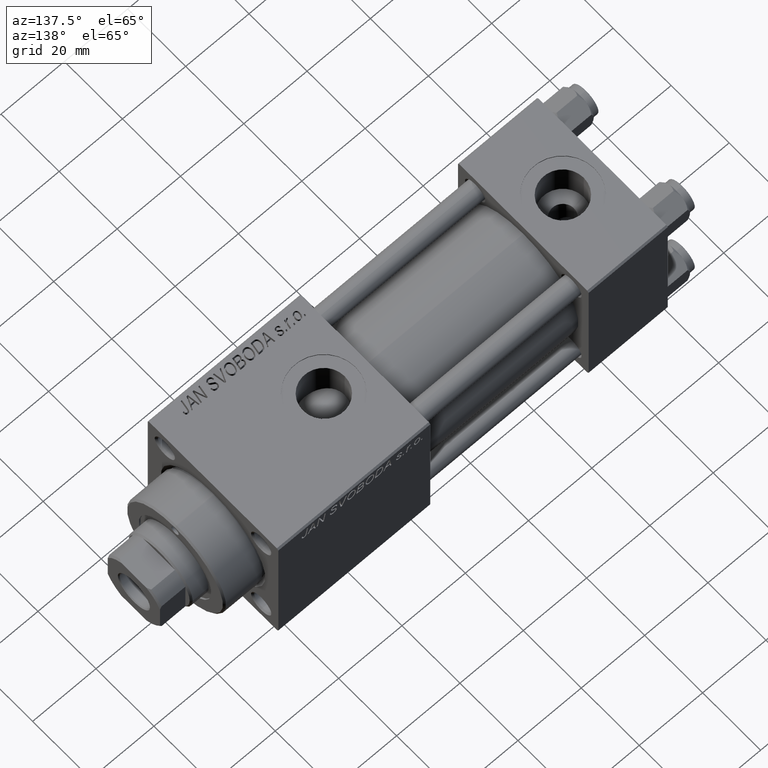
[diagram: clean part render]
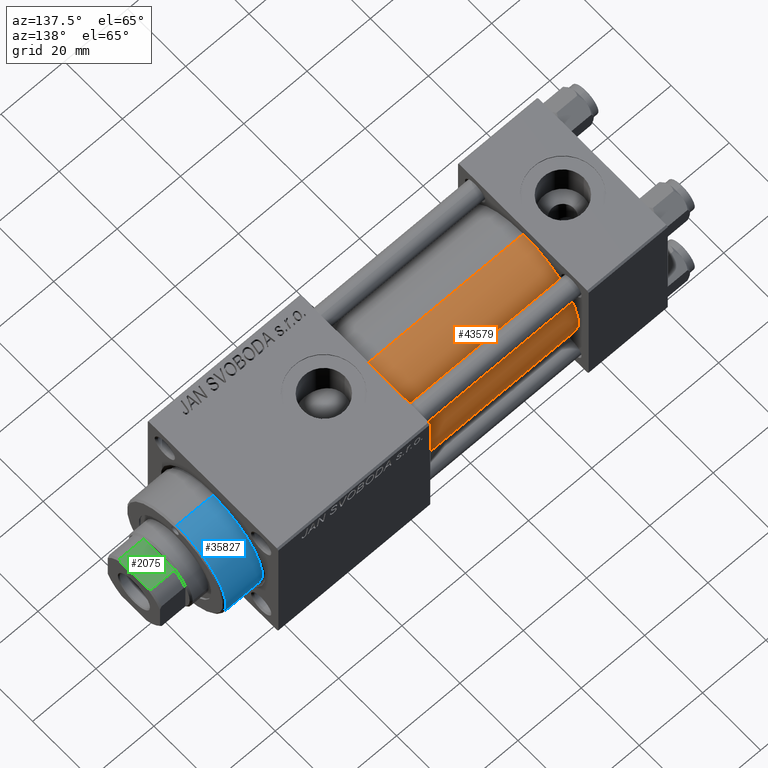
[diagram: same view with three faces highlighted in distinct colors, each labeled with its STEP entity id]
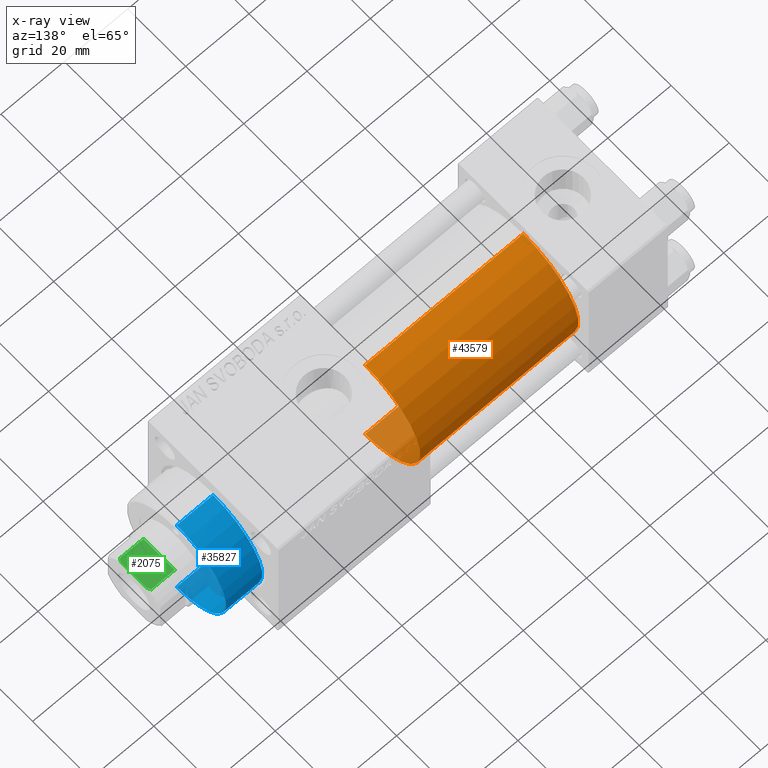
[diagram: x-ray of the same camera — body ghosted, the three highlighted faces saturated]
A machine part, auxiliary view with three faces highlighted in distinct colors.
The next image is the same camera in x-ray (body ghosted, the three faces saturated) — at least one of them is partly hidden behind the body in this view.
Their STEP definitions:

[orange] entity #43579 — the highlighted cylindrical surface (partial cylindrical patch) has radius 19 mm, axis along (-1, -0, -0).
#2947 = CIRCLE ( 'NONE', #14294, 19.00000000000000000 ) ;
#3344 = CARTESIAN_POINT ( 'NONE',  ( 75.00000000000001421, -2.752562955852396712E-16, -19.00000000000000000 ) ) ;
#7491 = CARTESIAN_POINT ( 'NONE',  ( 75.00000000000001421, -2.602085213965210642E-15, 19.00000000000000000 ) ) ;
#7539 = EDGE_CURVE ( 'NONE', #46469, #45564, #2947, .T. ) ;
#9123 = VERTEX_POINT ( 'NONE', #37791 ) ;
#9399 = CARTESIAN_POINT ( 'NONE',  ( 75.00000000000001421, -2.752562955852396712E-16, -19.00000000000000000 ) ) ;
#9775 = CARTESIAN_POINT ( 'NONE',  ( 75.00000000000001421, -2.602085213965210642E-15, 0.000000000000000000 ) ) ;
#9800 = CARTESIAN_POINT ( 'NONE',  ( 25.00000000000000000, -2.602085213965210642E-15, 19.00000000000000000 ) ) ;
#13107 = DIRECTION ( 'NONE',  ( -1.000000000000000000, -0.000000000000000000, -0.000000000000000000 ) ) ;
#14232 = ORIENTED_EDGE ( 'NONE', *, *, #31962, .F. ) ;
#14294 = AXIS2_PLACEMENT_3D ( 'NONE', #18161, #14336, #30627 ) ;
#14336 = DIRECTION ( 'NONE',  ( 1.000000000000000000, -0.000000000000000000, 0.000000000000000000 ) ) ;
#16686 = EDGE_CURVE ( 'NONE', #9123, #45564, #42639, .T. ) ;
#16813 = LINE ( 'NONE', #9399, #28080 ) ;
#17155 = CARTESIAN_POINT ( 'NONE',  ( 75.00000000000001421, -2.602085213965210642E-15, 0.000000000000000000 ) ) ;
#17395 = DIRECTION ( 'NONE',  ( 1.000000000000000000, 0.000000000000000000, 0.000000000000000000 ) ) ;
#18161 = CARTESIAN_POINT ( 'NONE',  ( 25.00000000000000000, -2.602085213965210642E-15, 0.000000000000000000 ) ) ;
#18279 = ORIENTED_EDGE ( 'NONE', *, *, #7539, .T. ) ;
#19733 = DIRECTION ( 'NONE',  ( -1.000000000000000000, -0.000000000000000000, -0.000000000000000000 ) ) ;
#25047 = DIRECTION ( 'NONE',  ( 0.000000000000000000, 0.000000000000000000, -1.000000000000000000 ) ) ;
#28080 = VECTOR ( 'NONE', #32332, 1000.000000000000000 ) ;
#28152 = CYLINDRICAL_SURFACE ( 'NONE', #29125, 19.00000000000000000 ) ;
#29125 = AXIS2_PLACEMENT_3D ( 'NONE', #9775, #13107, #32213 ) ;
#30627 = DIRECTION ( 'NONE',  ( 0.000000000000000000, 0.000000000000000000, 1.000000000000000000 ) ) ;
#31962 = EDGE_CURVE ( 'NONE', #34368, #9123, #40189, .T. ) ;
#32213 = DIRECTION ( 'NONE',  ( 0.000000000000000000, 0.000000000000000000, 1.000000000000000000 ) ) ;
#32332 = DIRECTION ( 'NONE',  ( -1.000000000000000000, -0.000000000000000000, -0.000000000000000000 ) ) ;
#34368 = VERTEX_POINT ( 'NONE', #3344 ) ;
#35396 = ORIENTED_EDGE ( 'NONE', *, *, #16686, .F. ) ;
#36202 = CARTESIAN_POINT ( 'NONE',  ( 25.00000000000000000, -2.752562955852396712E-16, -19.00000000000000000 ) ) ;
#37791 = CARTESIAN_POINT ( 'NONE',  ( 75.00000000000001421, -2.602085213965210642E-15, 19.00000000000000000 ) ) ;
#38433 = ORIENTED_EDGE ( 'NONE', *, *, #38959, .T. ) ;
#38959 = EDGE_CURVE ( 'NONE', #34368, #46469, #16813, .T. ) ;
#40189 = CIRCLE ( 'NONE', #48313, 19.00000000000000000 ) ;
#42639 = LINE ( 'NONE', #7491, #45507 ) ;
#43579 = ADVANCED_FACE ( 'NONE', ( #44167 ), #28152, .T. ) ;
#44167 = FACE_OUTER_BOUND ( 'NONE', #46985, .T. ) ;
#45507 = VECTOR ( 'NONE', #19733, 1000.000000000000000 ) ;
#45564 = VERTEX_POINT ( 'NONE', #9800 ) ;
#46469 = VERTEX_POINT ( 'NONE', #36202 ) ;
#46985 = EDGE_LOOP ( 'NONE', ( #14232, #38433, #18279, #35396 ) ) ;
#48313 = AXIS2_PLACEMENT_3D ( 'NONE', #17155, #17395, #25047 ) ;

[blue] entity #35827 — the highlighted cylindrical surface (partial cylindrical patch) has radius 17 mm, axis along (-1, -0, -0).
#1520 = CARTESIAN_POINT ( 'NONE',  ( 0.000000000000000000, 0.000000000000000000, 40.19999999999999574 ) ) ;
#2069 = FACE_OUTER_BOUND ( 'NONE', #36493, .T. ) ;
#2784 = AXIS2_PLACEMENT_3D ( 'NONE', #18611, #37195, #14528 ) ;
#3169 = DIRECTION ( 'NONE',  ( 0.000000000000000000, 0.000000000000000000, 1.000000000000000000 ) ) ;
#5563 = EDGE_CURVE ( 'NONE', #50344, #8810, #31884, .T. ) ;
#6723 = CARTESIAN_POINT ( 'NONE',  ( 0.000000000000000000, 0.000000000000000000, 28.69999999999999929 ) ) ;
#7106 = VERTEX_POINT ( 'NONE', #30525 ) ;
#7212 = CIRCLE ( 'NONE', #27561, 17.00000000000000000 ) ;
#8810 = VERTEX_POINT ( 'NONE', #24406 ) ;
#9346 = VECTOR ( 'NONE', #46941, 1000.000000000000000 ) ;
#9726 = ORIENTED_EDGE ( 'NONE', *, *, #5563, .F. ) ;
#13121 = VERTEX_POINT ( 'NONE', #18186 ) ;
#13700 = LINE ( 'NONE', #44029, #19009 ) ;
#14528 = DIRECTION ( 'NONE',  ( -1.000000000000000000, 0.000000000000000000, 0.000000000000000000 ) ) ;
#14866 = DIRECTION ( 'NONE',  ( 1.000000000000000000, 0.000000000000000000, 0.000000000000000000 ) ) ;
#15672 = CARTESIAN_POINT ( 'NONE',  ( -17.00000000000000000, 0.000000000000000000, 40.19999999999999574 ) ) ;
#17280 = DIRECTION ( 'NONE',  ( -0.000000000000000000, -0.000000000000000000, -1.000000000000000000 ) ) ;
#17598 = CYLINDRICAL_SURFACE ( 'NONE', #2784, 17.00000000000000000 ) ;
#18186 = CARTESIAN_POINT ( 'NONE',  ( 17.00000000000000000, 2.081899558550500280E-15, 40.19999999999999574 ) ) ;
#18611 = CARTESIAN_POINT ( 'NONE',  ( 0.000000000000000000, 0.000000000000000000, 40.70000000000000284 ) ) ;
#19009 = VECTOR ( 'NONE', #17280, 1000.000000000000000 ) ;
#19819 = ORIENTED_EDGE ( 'NONE', *, *, #43690, .T. ) ;
#24406 = CARTESIAN_POINT ( 'NONE',  ( -17.00000000000000000, 0.000000000000000000, 28.69999999999999929 ) ) ;
#24467 = DIRECTION ( 'NONE',  ( 0.000000000000000000, 0.000000000000000000, -1.000000000000000000 ) ) ;
#27344 = CARTESIAN_POINT ( 'NONE',  ( -17.00000000000000000, 0.000000000000000000, 40.70000000000000284 ) ) ;
#27561 = AXIS2_PLACEMENT_3D ( 'NONE', #6723, #3169, #14866 ) ;
#30525 = CARTESIAN_POINT ( 'NONE',  ( 17.00000000000000000, 2.081899558550500280E-15, 28.69999999999999929 ) ) ;
#31884 = LINE ( 'NONE', #27344, #9346 ) ;
#34164 = ORIENTED_EDGE ( 'NONE', *, *, #34621, .T. ) ;
#34621 = EDGE_CURVE ( 'NONE', #13121, #7106, #13700, .T. ) ;
#35827 = ADVANCED_FACE ( 'NONE', ( #2069 ), #17598, .T. ) ;
#36493 = EDGE_LOOP ( 'NONE', ( #47776, #34164, #19819, #9726 ) ) ;
#36958 = CIRCLE ( 'NONE', #43499, 17.00000000000000000 ) ;
#37195 = DIRECTION ( 'NONE',  ( -0.000000000000000000, -0.000000000000000000, -1.000000000000000000 ) ) ;
#38069 = EDGE_CURVE ( 'NONE', #50344, #13121, #36958, .T. ) ;
#43499 = AXIS2_PLACEMENT_3D ( 'NONE', #1520, #24467, #48353 ) ;
#43690 = EDGE_CURVE ( 'NONE', #7106, #8810, #7212, .T. ) ;
#44029 = CARTESIAN_POINT ( 'NONE',  ( 17.00000000000000000, 2.081899558550500280E-15, 40.70000000000000284 ) ) ;
#46941 = DIRECTION ( 'NONE',  ( -0.000000000000000000, -0.000000000000000000, -1.000000000000000000 ) ) ;
#47776 = ORIENTED_EDGE ( 'NONE', *, *, #38069, .T. ) ;
#48353 = DIRECTION ( 'NONE',  ( 1.000000000000000000, 0.000000000000000000, 0.000000000000000000 ) ) ;
#50344 = VERTEX_POINT ( 'NONE', #15672 ) ;

[green] entity #2075 — the highlighted planar face has unit normal (0, 0, -1).
#2075 = ADVANCED_FACE ( 'NONE', ( #44737 ), #25395, .F. ) ;
#4205 = CARTESIAN_POINT ( 'NONE',  ( 4.358898943540667759, -9.000000000000001776, 123.0000000000000000 ) ) ;
#4814 = VERTEX_POINT ( 'NONE', #33873 ) ;
#5967 = DIRECTION ( 'NONE',  ( -0.000000000000000000, -0.000000000000000000, 1.000000000000000000 ) ) ;
#6029 = DIRECTION ( 'NONE',  ( 0.000000000000000000, 1.000000000000000000, 0.000000000000000000 ) ) ;
#6402 = DIRECTION ( 'NONE',  ( 1.000000000000000000, 0.000000000000000000, 0.000000000000000000 ) ) ;
#6624 = CARTESIAN_POINT ( 'NONE',  ( 4.358898943540667759, -9.000000000000001776, 123.0000000000000000 ) ) ;
#6928 = CARTESIAN_POINT ( 'NONE',  ( 5.408326913195988794, -8.999999999999998224, -0.001000000000001000089 ) ) ;
#7039 = VECTOR ( 'NONE', #6402, 1000.000000000000000 ) ;
#8441 = EDGE_LOOP ( 'NONE', ( #41446, #22738, #12779, #34556, #23050, #40198 ) ) ;
#9542 = EDGE_CURVE ( 'NONE', #26299, #29991, #29081, .T. ) ;
#10176 = CARTESIAN_POINT ( 'NONE',  ( 5.063687070142448121, -8.999999999999998224, 122.6775166608139216 ) ) ;
#10489 = VECTOR ( 'NONE', #34421, 1000.000000000000000 ) ;
#12477 = LINE ( 'NONE', #39487, #13383 ) ;
#12779 = ORIENTED_EDGE ( 'NONE', *, *, #9542, .F. ) ;
#13383 = VECTOR ( 'NONE', #27781, 1000.000000000000000 ) ;
#15534 = EDGE_CURVE ( 'NONE', #42637, #40065, #49193, .T. ) ;
#16633 = CARTESIAN_POINT ( 'NONE',  ( 5.408326913195988794, -8.999999999999998224, 115.0000000000000284 ) ) ;
#19756 = EDGE_CURVE ( 'NONE', #4814, #31509, #36527, .T. ) ;
#20830 = DIRECTION ( 'NONE',  ( 0.000000000000000000, -0.000000000000000000, 1.000000000000000000 ) ) ;
#21625 = CARTESIAN_POINT ( 'NONE',  ( -4.358898943540667759, -9.000000000000001776, 123.0000000000000000 ) ) ;
#21907 = CARTESIAN_POINT ( 'NONE',  ( 4.714305797500245809, -9.000000000000001776, 122.8450817439748448 ) ) ;
#22738 = ORIENTED_EDGE ( 'NONE', *, *, #31160, .T. ) ;
#23050 = ORIENTED_EDGE ( 'NONE', *, *, #19756, .F. ) ;
#25395 = PLANE ( 'NONE',  #29686 ) ;
#25439 = CARTESIAN_POINT ( 'NONE',  ( -4.714305797500247586, -9.000000000000001776, 122.8450817439748448 ) ) ;
#26299 = VERTEX_POINT ( 'NONE', #33104 ) ;
#27781 = DIRECTION ( 'NONE',  ( 1.000000000000000000, 0.000000000000000000, 0.000000000000000000 ) ) ;
#29009 = CARTESIAN_POINT ( 'NONE',  ( -5.408326913195988794, -8.999999999999998224, 122.5000000000000000 ) ) ;
#29081 = LINE ( 'NONE', #41296, #7039 ) ;
#29686 = AXIS2_PLACEMENT_3D ( 'NONE', #40177, #6029, #20830 ) ;
#29795 = CARTESIAN_POINT ( 'NONE',  ( 5.408326913195988794, -8.999999999999998224, 122.5000000000000000 ) ) ;
#29991 = VERTEX_POINT ( 'NONE', #4205 ) ;
#31160 = EDGE_CURVE ( 'NONE', #40065, #29991, #36933, .T. ) ;
#31509 = VERTEX_POINT ( 'NONE', #34824 ) ;
#33104 = CARTESIAN_POINT ( 'NONE',  ( -4.358898943540667759, -9.000000000000001776, 123.0000000000000000 ) ) ;
#33873 = CARTESIAN_POINT ( 'NONE',  ( -5.408326913195988794, -8.999999999999998224, 115.0000000000000284 ) ) ;
#34421 = DIRECTION ( 'NONE',  ( -0.000000000000000000, -0.000000000000000000, 1.000000000000000000 ) ) ;
#34556 = ORIENTED_EDGE ( 'NONE', *, *, #46055, .T. ) ;
#34824 = CARTESIAN_POINT ( 'NONE',  ( -5.408326913195988794, -8.999999999999998224, 122.5000000000000000 ) ) ;
#36062 = EDGE_CURVE ( 'NONE', #4814, #42637, #12477, .T. ) ;
#36527 = LINE ( 'NONE', #48993, #47884 ) ;
#36933 = B_SPLINE_CURVE_WITH_KNOTS ( 'NONE', 3,
 ( #29795, #10176, #21907, #6624 ),
 .UNSPECIFIED., .F., .F.,
 ( 4, 4 ),
 ( 0.000000000000000000, 0.001162453897363199080 ),
 .UNSPECIFIED. ) ;
#39487 = CARTESIAN_POINT ( 'NONE',  ( -9.000000000000001776, -9.000000000000001776, 115.0000000000000000 ) ) ;
#40065 = VERTEX_POINT ( 'NONE', #44499 ) ;
#40177 = CARTESIAN_POINT ( 'NONE',  ( -9.000000000000001776, -9.000000000000001776, 123.0000000000000000 ) ) ;
#40198 = ORIENTED_EDGE ( 'NONE', *, *, #36062, .T. ) ;
#41296 = CARTESIAN_POINT ( 'NONE',  ( -9.000000000000001776, -9.000000000000001776, 123.0000000000000000 ) ) ;
#41446 = ORIENTED_EDGE ( 'NONE', *, *, #15534, .T. ) ;
#42637 = VERTEX_POINT ( 'NONE', #16633 ) ;
#44499 = CARTESIAN_POINT ( 'NONE',  ( 5.408326913195988794, -8.999999999999998224, 122.5000000000000000 ) ) ;
#44737 = FACE_OUTER_BOUND ( 'NONE', #8441, .T. ) ;
#46055 = EDGE_CURVE ( 'NONE', #26299, #31509, #49792, .T. ) ;
#47850 = CARTESIAN_POINT ( 'NONE',  ( -5.063687070142449009, -9.000000000000001776, 122.6775166608139216 ) ) ;
#47884 = VECTOR ( 'NONE', #5967, 1000.000000000000000 ) ;
#48993 = CARTESIAN_POINT ( 'NONE',  ( -5.408326913195988794, -8.999999999999998224, -0.001000000000001000089 ) ) ;
#49193 = LINE ( 'NONE', #6928, #10489 ) ;
#49792 = B_SPLINE_CURVE_WITH_KNOTS ( 'NONE', 3,
 ( #21625, #25439, #47850, #29009 ),
 .UNSPECIFIED., .F., .F.,
 ( 4, 4 ),
 ( 0.000000000000000000, 0.001162453897363199080 ),
 .UNSPECIFIED. ) ;